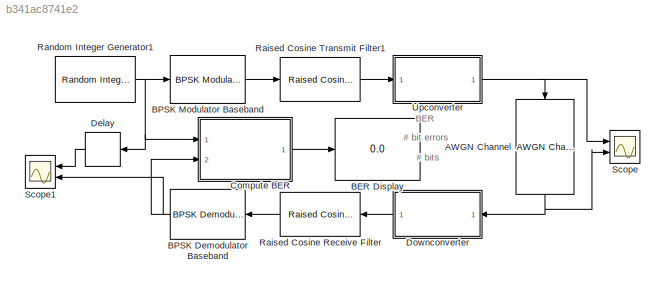
MODEL slx_b341ac8741e2
KIND model
CONFIG AbsTol = auto
CONFIG EnableMultiTasking = off
CONFIG FixedStep = auto
CONFIG MaxStep = auto
CONFIG MinStep = auto
CONFIG RelTol = 1e-3
CONFIG SampleTimeConstraint = Unconstrained
CONFIG SolverName = VariableStepAuto
CONFIG StartTime = 0.0
CONFIG StopTime = 100*1e-6
BLOCK [Reference] AWGN Channel  REF=commchan3/AWGN
Channel
  NameLocation = left
  Ports = [1, 1]
  SourceBlock = commchan3/AWGN\nChannel
  SourceProductBaseCode = CM
  SourceType = AWGN Channel
  UserDataPersistent = on
BLOCK [Display] BER Display
  Decimation = 1
  Ports = [1]
BLOCK [Reference] BPSK Demodulator Baseband  REF=commdigbbndpm3/BPSK
Demodulator
Baseband
  NameLocation = top
  Ports = [1, 1]
  SourceBlock = commdigbbndpm3/BPSK\nDemodulator\nBaseband
  SourceProductBaseCode = CM
  SourceType = BPSK Demodulator Baseband
BLOCK [Reference] BPSK Modulator Baseband  REF=commdigbbndpm3/BPSK
Modulator
Baseband
  Ports = [1, 1]
  SourceBlock = commdigbbndpm3/BPSK\nModulator\nBaseband
  SourceProductBaseCode = CM
  SourceType = BPSK Modulator Baseband
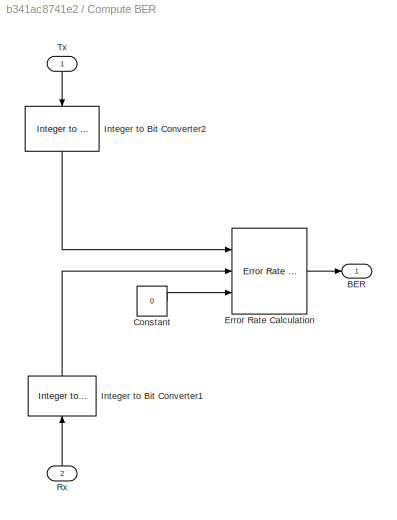
BLOCK [SubSystem] Compute BER
  Ports = [2, 1]
  RequestExecContextInheritance = off
BLOCK [Outport] Compute BER/BER
  VectorParamsAs1DForOutWhenUnconnected = off
BLOCK [Constant] Compute BER/Constant
  SampleTime = 1e-6
  Value = 0
BLOCK [Reference] Compute BER/Error Rate Calculation  REF=commsink2/Error Rate
Calculation
  Ports = [3, 1]
  SourceBlock = commsink2/Error Rate\nCalculation
  SourceProductBaseCode = CM
  SourceType = Error Rate Calculation
BLOCK [Reference] Compute BER/Integer to Bit Converter1  REF=commutil2/Integer to Bit
Converter
  NameLocation = left
  Ports = [1, 1]
  SourceBlock = commutil2/Integer to Bit\nConverter
  SourceProductBaseCode = CM
  SourceType = Integer to Bit Converter
BLOCK [Reference] Compute BER/Integer to Bit Converter2  REF=commutil2/Integer to Bit
Converter
  NameLocation = right
  Ports = [1, 1]
  SourceBlock = commutil2/Integer to Bit\nConverter
  SourceProductBaseCode = CM
  SourceType = Integer to Bit Converter
BLOCK [Inport] Compute BER/Rx
  NameLocation = right
  Port = 2
BLOCK [Inport] Compute BER/Tx
  NameLocation = right
BLOCK [Delay] Delay
  DelayLength = 10
  InputPortMap = u0
  NameLocation = top
  Ports = [1, 1]
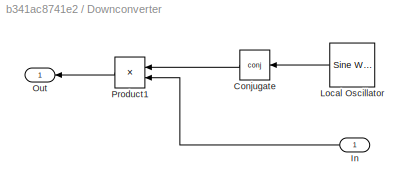
BLOCK [SubSystem] Downconverter
  Ports = [1, 1]
  RequestExecContextInheritance = off
BLOCK [Math] Downconverter/Conjugate
  NameLocation = top
  Operator = conj
  Ports = [1, 1]
  SignedPower = on
BLOCK [Inport] Downconverter/In
  NameLocation = top
BLOCK [Reference] Downconverter/Local Oscillator  REF=dspsrcs4/Sine Wave
  NameLocation = top
  Ports = [0, 1]
  SourceBlock = dspsrcs4/Sine Wave
  SourceProductBaseCode = DS
  SourceType = Sine Wave
BLOCK [Outport] Downconverter/Out
  NameLocation = top
  VectorParamsAs1DForOutWhenUnconnected = off
BLOCK [Product] Downconverter/Product1
  Ports = [2, 1]
  RndMeth = Zero
BLOCK [Reference] Raised Cosine Receive Filter  REF=commfilt2/Raised Cosine
Receive Filter
  NameLocation = top
  Ports = [1, 1]
  SourceBlock = commfilt2/Raised Cosine\nReceive Filter
  SourceProductBaseCode = CM
  SourceType = Raised Cosine Receive Filter
  UserDataPersistent = on
BLOCK [Reference] Raised Cosine Transmit Filter1  REF=commfilt2/Raised Cosine
Transmit Filter
  Ports = [1, 1]
  SourceBlock = commfilt2/Raised Cosine\nTransmit Filter
  SourceProductBaseCode = CM
  SourceType = Raised Cosine Transmit Filter
  UserDataPersistent = on
BLOCK [Reference] Random Integer Generator1  REF=commrandsrc3/Random Integer
Generator
  Ports = [0, 1]
  SourceBlock = commrandsrc3/Random Integer\nGenerator
  SourceProductBaseCode = CM
  SourceType = Random Integer Generator
BLOCK [Scope] Scope
  Floating = off
  NumInputPorts = 2
  Ports = [2]
  ScopeSpecificationString = Simulink.scopes.TimeScopeBlockCfg('CurrentConfiguration', extmgr.ConfigurationSet(extmgr.Configuration('Core','General UI',true,'FigureColor',[1 1 1]),extmgr.Configuration('Core','Source UI',true),extmgr.Configuration('Sources','WiredSimulink',true),extmgr.Configuration('Visuals','Time Domain',true,'SerializedDisplays',{struct('MinYLimReal','-0.73269','MaxYLimReal','0.76076','YLabelReal','','MinYL...<+2473ch>
BLOCK [Scope] Scope1
  Floating = off
  NameLocation = top
  NumInputPorts = 2
  Ports = [2]
  ScopeSpecificationString = Simulink.scopes.TimeScopeBlockCfg('CurrentConfiguration', extmgr.ConfigurationSet(extmgr.Configuration('Core','General UI',true),extmgr.Configuration('Core','Source UI',true),extmgr.Configuration('Sources','WiredSimulink',true,'DataLoggingVariableName','ScopeData1'),extmgr.Configuration('Visuals','Time Domain',true,'SerializedDisplays',{struct('MinYLimReal','-0.125','MaxYLimReal','1.125','YLabelRe...<+1790ch>
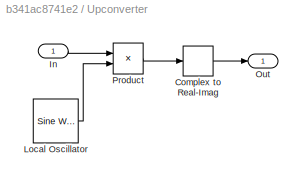
BLOCK [SubSystem] Upconverter
  Ports = [1, 1]
  RequestExecContextInheritance = off
BLOCK [ComplexToRealImag] Upconverter/Complex to Real-Imag
  Output = Real
  Ports = [1, 1]
BLOCK [Inport] Upconverter/In
BLOCK [Reference] Upconverter/Local Oscillator  REF=dspsrcs4/Sine Wave
  Ports = [0, 1]
  SourceBlock = dspsrcs4/Sine Wave
  SourceProductBaseCode = DS
  SourceType = Sine Wave
BLOCK [Outport] Upconverter/Out
  VectorParamsAs1DForOutWhenUnconnected = off
BLOCK [Product] Upconverter/Product
  Ports = [2, 1]
  RndMeth = Zero
ANNOTATION (root): # bit errors
ANNOTATION (root): # bits
ANNOTATION (root): BER
NET AWGN Channel:1 -> Downconverter:1, Scope:2
NET BPSK Demodulator Baseband:1 -> Compute BER:2, Scope1:2
LINE BPSK Modulator Baseband:1 -> Raised Cosine Transmit Filter1:1
LINE Compute BER/Constant:1 -> Compute BER/Error Rate Calculation:3
LINE Compute BER/Error Rate Calculation:1 -> Compute BER/BER:1
LINE Compute BER/Integer to Bit Converter1:1 -> Compute BER/Error Rate Calculation:2
LINE Compute BER/Integer to Bit Converter2:1 -> Compute BER/Error Rate Calculation:1
LINE Compute BER/Rx:1 -> Compute BER/Integer to Bit Converter1:1
LINE Compute BER/Tx:1 -> Compute BER/Integer to Bit Converter2:1
LINE Compute BER:1 -> BER Display:1
LINE Delay:1 -> Scope1:1
LINE Downconverter/Conjugate:1 -> Downconverter/Product1:1
LINE Downconverter/In:1 -> Downconverter/Product1:2
LINE Downconverter/Local Oscillator:1 -> Downconverter/Conjugate:1
LINE Downconverter/Product1:1 -> Downconverter/Out:1
LINE Downconverter:1 -> Raised Cosine Receive Filter:1
LINE Raised Cosine Receive Filter:1 -> BPSK Demodulator Baseband:1
LINE Raised Cosine Transmit Filter1:1 -> Upconverter:1
NET Random Integer Generator1:1 -> BPSK Modulator Baseband:1, Compute BER:1, Delay:1
LINE Upconverter/Complex to Real-Imag:1 -> Upconverter/Out:1
LINE Upconverter/In:1 -> Upconverter/Product:1
LINE Upconverter/Local Oscillator:1 -> Upconverter/Product:2
LINE Upconverter/Product:1 -> Upconverter/Complex to Real-Imag:1
NET Upconverter:1 -> AWGN Channel:1, Scope:1
note: NET lines group one-source signal fan-out (src -> all destinations, sorted); 1:1 wires keep LINE
